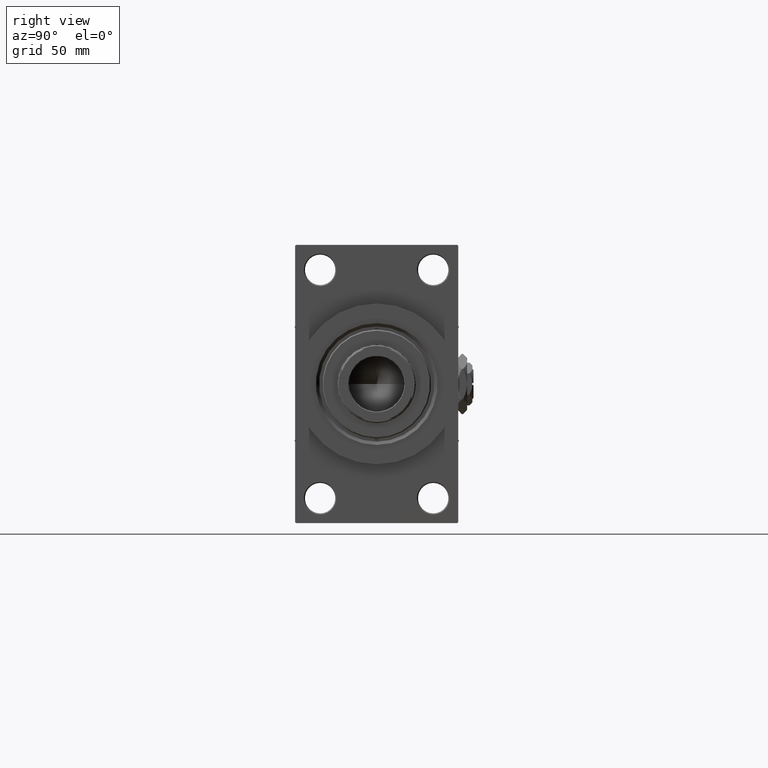
[diagram: clean part render]
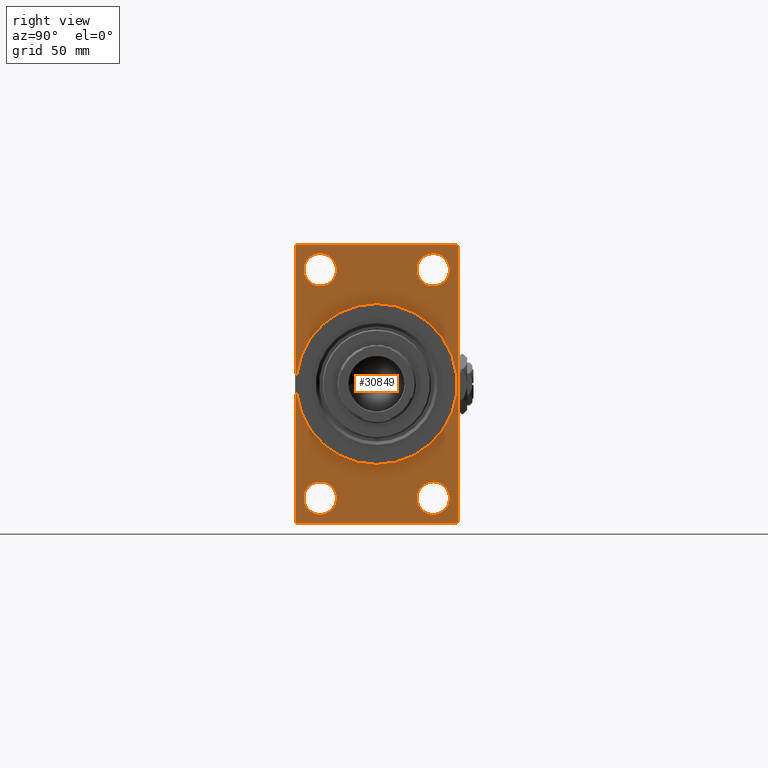
[diagram: same view with one face highlighted and labeled with its STEP entity id]
A machine part, right view. The second image highlights one B-rep face of the part: STEP entity #30849.
In plain terms, the highlighted planar face has unit normal (-1, 0, 0).
Its self-contained STEP definition (entity closure, byte-faithful):
#24 = FACE_BOUND ( 'NONE', #5072, .T. ) ;
#375 = VECTOR ( 'NONE', #11101, 1000.000000000000000 ) ;
#501 = CIRCLE ( 'NONE', #13328, 7.500000000000034639 ) ;
#1618 = ORIENTED_EDGE ( 'NONE', *, *, #11907, .F. ) ;
#1698 = DIRECTION ( 'NONE',  ( 0.000000000000000000, 0.000000000000000000, 1.000000000000000000 ) ) ;
#2341 = CIRCLE ( 'NONE', #30348, 7.500000000000034639 ) ;
#2369 = AXIS2_PLACEMENT_3D ( 'NONE', #30308, #7727, #42069 ) ;
#2934 = ORIENTED_EDGE ( 'NONE', *, *, #43021, .T. ) ;
#3320 = FACE_BOUND ( 'NONE', #43847, .T. ) ;
#3484 = EDGE_CURVE ( 'NONE', #8895, #39971, #23420, .T. ) ;
#3550 = FACE_OUTER_BOUND ( 'NONE', #44103, .T. ) ;
#3788 = FACE_BOUND ( 'NONE', #10649, .T. ) ;
#3893 = ORIENTED_EDGE ( 'NONE', *, *, #41889, .F. ) ;
#3913 = DIRECTION ( 'NONE',  ( -0.000000000000000000, 0.7071067811865574537, 0.7071067811865376918 ) ) ;
#4033 = DIRECTION ( 'NONE',  ( -0.000000000000000000, 0.000000000000000000, 1.000000000000000000 ) ) ;
#4375 = DIRECTION ( 'NONE',  ( 0.000000000000000000, -5.421010862427522170E-17, -1.000000000000000000 ) ) ;
#4381 = VERTEX_POINT ( 'NONE', #43469 ) ;
#4395 = VERTEX_POINT ( 'NONE', #16418 ) ;
#4604 = VECTOR ( 'NONE', #4375, 1000.000000000000000 ) ;
#5072 = EDGE_LOOP ( 'NONE', ( #15855, #3893 ) ) ;
#5077 = DIRECTION ( 'NONE',  ( 0.000000000000000000, 0.000000000000000000, 1.000000000000000000 ) ) ;
#5959 = CARTESIAN_POINT ( 'NONE',  ( 243.0000000000000000, -25.99999999999999645, 52.50000000000000000 ) ) ;
#6035 = DIRECTION ( 'NONE',  ( 0.000000000000000000, 0.000000000000000000, -1.000000000000000000 ) ) ;
#6066 = VERTEX_POINT ( 'NONE', #31106 ) ;
#6174 = CARTESIAN_POINT ( 'NONE',  ( 243.0000000000000000, -25.99999999999999645, 52.50000000000000000 ) ) ;
#6780 = EDGE_CURVE ( 'NONE', #14321, #25291, #12611, .T. ) ;
#7015 = CARTESIAN_POINT ( 'NONE',  ( 243.0000000000000000, 4.531193156845206793E-15, -37.00000000000000000 ) ) ;
#7289 = DIRECTION ( 'NONE',  ( 0.000000000000000000, -1.000000000000000000, -1.850371707708594563E-16 ) ) ;
#7727 = DIRECTION ( 'NONE',  ( -1.000000000000000000, 0.000000000000000000, -0.000000000000000000 ) ) ;
#7881 = CARTESIAN_POINT ( 'NONE',  ( 243.0000000000000000, 37.50000000000000000, 63.99999999999998579 ) ) ;
#7921 = DIRECTION ( 'NONE',  ( -1.000000000000000000, 0.000000000000000000, -0.000000000000000000 ) ) ;
#8305 = CARTESIAN_POINT ( 'NONE',  ( 243.0000000000000000, 37.00000000000000000, 63.99999999999998579 ) ) ;
#8319 = ORIENTED_EDGE ( 'NONE', *, *, #45312, .T. ) ;
#8830 = CARTESIAN_POINT ( 'NONE',  ( 243.0000000000000000, -25.99999999999999645, -52.49999999999999289 ) ) ;
#8895 = VERTEX_POINT ( 'NONE', #39167 ) ;
#8971 = DIRECTION ( 'NONE',  ( 0.000000000000000000, -1.000000000000000000, -1.850371707708594563E-16 ) ) ;
#9391 = EDGE_CURVE ( 'NONE', #29047, #39971, #19211, .T. ) ;
#9460 = VERTEX_POINT ( 'NONE', #42736 ) ;
#9551 = ORIENTED_EDGE ( 'NONE', *, *, #44975, .T. ) ;
#9721 = DIRECTION ( 'NONE',  ( 0.000000000000000000, 0.000000000000000000, 1.000000000000000000 ) ) ;
#9722 = AXIS2_PLACEMENT_3D ( 'NONE', #33805, #49111, #30046 ) ;
#9878 = CARTESIAN_POINT ( 'NONE',  ( 243.0000000000000000, 26.00000000000000000, -60.00000000000002842 ) ) ;
#10420 = CARTESIAN_POINT ( 'NONE',  ( 243.0000000000000000, -37.49999999999999289, 63.50000000000000000 ) ) ;
#10648 = EDGE_CURVE ( 'NONE', #34081, #6066, #2341, .T. ) ;
#10649 = EDGE_LOOP ( 'NONE', ( #35722, #47927 ) ) ;
#10667 = DIRECTION ( 'NONE',  ( 0.000000000000000000, 0.000000000000000000, 1.000000000000000000 ) ) ;
#10677 = VECTOR ( 'NONE', #8971, 1000.000000000000000 ) ;
#11057 = LINE ( 'NONE', #41635, #30382 ) ;
#11101 = DIRECTION ( 'NONE',  ( 0.000000000000000000, 0.000000000000000000, -1.000000000000000000 ) ) ;
#11163 = AXIS2_PLACEMENT_3D ( 'NONE', #30603, #45900, #4033 ) ;
#11688 = VECTOR ( 'NONE', #12318, 1000.000000000000114 ) ;
#11836 = CARTESIAN_POINT ( 'NONE',  ( 243.0000000000000000, 0.000000000000000000, 0.000000000000000000 ) ) ;
#11907 = EDGE_CURVE ( 'NONE', #29047, #14042, #11057, .T. ) ;
#12312 = ORIENTED_EDGE ( 'NONE', *, *, #40842, .T. ) ;
#12318 = DIRECTION ( 'NONE',  ( 0.000000000000000000, -0.7071067811865474617, 0.7071067811865474617 ) ) ;
#12611 = CIRCLE ( 'NONE', #40629, 7.500000000000034639 ) ;
#12717 = VECTOR ( 'NONE', #3913, 999.9999999999998863 ) ;
#12738 = DIRECTION ( 'NONE',  ( -1.000000000000000000, 0.000000000000000000, -0.000000000000000000 ) ) ;
#13328 = AXIS2_PLACEMENT_3D ( 'NONE', #36044, #28508, #1698 ) ;
#13461 = DIRECTION ( 'NONE',  ( 0.000000000000000000, 0.000000000000000000, 1.000000000000000000 ) ) ;
#13924 = AXIS2_PLACEMENT_3D ( 'NONE', #8830, #43667, #5077 ) ;
#14042 = VERTEX_POINT ( 'NONE', #43808 ) ;
#14189 = LINE ( 'NONE', #10420, #36867 ) ;
#14321 = VERTEX_POINT ( 'NONE', #43671 ) ;
#14845 = CARTESIAN_POINT ( 'NONE',  ( 243.0000000000000000, -37.00000000000002132, -64.00000000000001421 ) ) ;
#14981 = ORIENTED_EDGE ( 'NONE', *, *, #3484, .F. ) ;
#15121 = CARTESIAN_POINT ( 'NONE',  ( 243.0000000000000000, -37.49999999999999289, 63.99999999999997158 ) ) ;
#15855 = ORIENTED_EDGE ( 'NONE', *, *, #48265, .F. ) ;
#16214 = ORIENTED_EDGE ( 'NONE', *, *, #33942, .T. ) ;
#16418 = CARTESIAN_POINT ( 'NONE',  ( 243.0000000000000000, 37.00000000000000000, 63.99999999999998579 ) ) ;
#17220 = AXIS2_PLACEMENT_3D ( 'NONE', #6174, #44517, #13461 ) ;
#17362 = EDGE_CURVE ( 'NONE', #4381, #33011, #33741, .T. ) ;
#17461 = DIRECTION ( 'NONE',  ( -1.000000000000000000, 0.000000000000000000, -0.000000000000000000 ) ) ;
#17582 = CIRCLE ( 'NONE', #2369, 7.500000000000034639 ) ;
#18607 = FACE_BOUND ( 'NONE', #28913, .T. ) ;
#19009 = VERTEX_POINT ( 'NONE', #32136 ) ;
#19211 = LINE ( 'NONE', #25991, #12717 ) ;
#19518 = CARTESIAN_POINT ( 'NONE',  ( 243.0000000000000000, 37.50000000000000000, 63.99999999999998579 ) ) ;
#20071 = EDGE_CURVE ( 'NONE', #8895, #4395, #23117, .T. ) ;
#21930 = ORIENTED_EDGE ( 'NONE', *, *, #9391, .T. ) ;
#22705 = VERTEX_POINT ( 'NONE', #47820 ) ;
#23117 = LINE ( 'NONE', #8305, #11688 ) ;
#23225 = DIRECTION ( 'NONE',  ( 0.000000000000000000, 0.000000000000000000, 1.000000000000000000 ) ) ;
#23353 = ORIENTED_EDGE ( 'NONE', *, *, #30980, .T. ) ;
#23420 = LINE ( 'NONE', #7881, #4604 ) ;
#25291 = VERTEX_POINT ( 'NONE', #9878 ) ;
#25991 = CARTESIAN_POINT ( 'NONE',  ( 243.0000000000000000, 37.49999999999999289, -63.50000000000007105 ) ) ;
#26045 = CARTESIAN_POINT ( 'NONE',  ( 243.0000000000000000, 37.00000000000004974, -64.00000000000000000 ) ) ;
#27120 = DIRECTION ( 'NONE',  ( 1.000000000000000000, 0.000000000000000000, 0.000000000000000000 ) ) ;
#27284 = AXIS2_PLACEMENT_3D ( 'NONE', #29727, #17461, #10667 ) ;
#28508 = DIRECTION ( 'NONE',  ( -1.000000000000000000, 0.000000000000000000, -0.000000000000000000 ) ) ;
#28913 = EDGE_LOOP ( 'NONE', ( #23353, #30238 ) ) ;
#29047 = VERTEX_POINT ( 'NONE', #26045 ) ;
#29214 = ORIENTED_EDGE ( 'NONE', *, *, #6780, .T. ) ;
#29727 = CARTESIAN_POINT ( 'NONE',  ( 243.0000000000000000, -25.99999999999999645, -52.49999999999999289 ) ) ;
#29906 = LINE ( 'NONE', #15121, #375 ) ;
#29951 = CIRCLE ( 'NONE', #39551, 37.00000000000000000 ) ;
#30046 = DIRECTION ( 'NONE',  ( 0.000000000000000000, 0.000000000000000000, 1.000000000000000000 ) ) ;
#30238 = ORIENTED_EDGE ( 'NONE', *, *, #17362, .T. ) ;
#30308 = CARTESIAN_POINT ( 'NONE',  ( 243.0000000000000000, 26.00000000000000000, 52.49999999999999289 ) ) ;
#30348 = AXIS2_PLACEMENT_3D ( 'NONE', #5959, #12738, #9721 ) ;
#30382 = VECTOR ( 'NONE', #7289, 1000.000000000000000 ) ;
#30603 = CARTESIAN_POINT ( 'NONE',  ( 243.0000000000000000, 0.000000000000000000, 0.000000000000000000 ) ) ;
#30690 = CARTESIAN_POINT ( 'NONE',  ( 243.0000000000000000, -25.99999999999999645, 60.00000000000003553 ) ) ;
#30698 = VECTOR ( 'NONE', #38126, 1000.000000000000114 ) ;
#30849 = ADVANCED_FACE ( 'NONE', ( #3788, #45670, #3320, #18607, #24, #3550 ), #41882, .F. ) ;
#30980 = EDGE_CURVE ( 'NONE', #33011, #4381, #17582, .T. ) ;
#31106 = CARTESIAN_POINT ( 'NONE',  ( 243.0000000000000000, -25.99999999999999645, 44.99999999999996447 ) ) ;
#31189 = VERTEX_POINT ( 'NONE', #35047 ) ;
#31604 = CARTESIAN_POINT ( 'NONE',  ( 243.0000000000000000, 26.00000000000000000, 44.99999999999995737 ) ) ;
#31930 = CARTESIAN_POINT ( 'NONE',  ( 243.0000000000000000, 0.000000000000000000, 37.00000000000000000 ) ) ;
#32136 = CARTESIAN_POINT ( 'NONE',  ( 243.0000000000000000, -37.00000000000001421, 63.99999999999997158 ) ) ;
#32950 = EDGE_CURVE ( 'NONE', #19009, #9460, #14189, .T. ) ;
#33011 = VERTEX_POINT ( 'NONE', #31604 ) ;
#33714 = CIRCLE ( 'NONE', #27284, 7.500000000000034639 ) ;
#33741 = CIRCLE ( 'NONE', #9722, 7.500000000000034639 ) ;
#33805 = CARTESIAN_POINT ( 'NONE',  ( 243.0000000000000000, 26.00000000000000000, 52.49999999999999289 ) ) ;
#33942 = EDGE_CURVE ( 'NONE', #34942, #22705, #33714, .T. ) ;
#34081 = VERTEX_POINT ( 'NONE', #30690 ) ;
#34121 = CARTESIAN_POINT ( 'NONE',  ( 243.0000000000000000, 37.49999999999999289, -63.50000000000007105 ) ) ;
#34574 = ORIENTED_EDGE ( 'NONE', *, *, #44170, .T. ) ;
#34942 = VERTEX_POINT ( 'NONE', #46177 ) ;
#34970 = ORIENTED_EDGE ( 'NONE', *, *, #20071, .T. ) ;
#35047 = CARTESIAN_POINT ( 'NONE',  ( 243.0000000000000000, -37.49999999999999289, -63.50000000000002842 ) ) ;
#35051 = LINE ( 'NONE', #19518, #10677 ) ;
#35722 = ORIENTED_EDGE ( 'NONE', *, *, #47742, .T. ) ;
#36044 = CARTESIAN_POINT ( 'NONE',  ( 243.0000000000000000, 26.00000000000000000, -52.49999999999999289 ) ) ;
#36621 = DIRECTION ( 'NONE',  ( 1.000000000000000000, 0.000000000000000000, 0.000000000000000000 ) ) ;
#36867 = VECTOR ( 'NONE', #44507, 1000.000000000000000 ) ;
#37106 = ORIENTED_EDGE ( 'NONE', *, *, #32950, .T. ) ;
#38126 = DIRECTION ( 'NONE',  ( 0.000000000000000000, 0.7071067811865376918, -0.7071067811865573427 ) ) ;
#39167 = CARTESIAN_POINT ( 'NONE',  ( 243.0000000000000000, 37.50000000000000000, 63.49999999999998579 ) ) ;
#39551 = AXIS2_PLACEMENT_3D ( 'NONE', #48657, #36621, #6035 ) ;
#39573 = EDGE_LOOP ( 'NONE', ( #12312, #16214 ) ) ;
#39971 = VERTEX_POINT ( 'NONE', #34121 ) ;
#40400 = CIRCLE ( 'NONE', #45215, 37.00000000000000000 ) ;
#40629 = AXIS2_PLACEMENT_3D ( 'NONE', #41776, #7921, #23225 ) ;
#40842 = EDGE_CURVE ( 'NONE', #22705, #34942, #47519, .T. ) ;
#41635 = CARTESIAN_POINT ( 'NONE',  ( 243.0000000000000000, 37.49999999999999289, -64.00000000000000000 ) ) ;
#41776 = CARTESIAN_POINT ( 'NONE',  ( 243.0000000000000000, 26.00000000000000000, -52.49999999999999289 ) ) ;
#41882 = PLANE ( 'NONE',  #11163 ) ;
#41889 = EDGE_CURVE ( 'NONE', #45233, #43642, #29951, .T. ) ;
#42069 = DIRECTION ( 'NONE',  ( 0.000000000000000000, 0.000000000000000000, 1.000000000000000000 ) ) ;
#42407 = DIRECTION ( 'NONE',  ( 0.000000000000000000, 0.000000000000000000, -1.000000000000000000 ) ) ;
#42736 = CARTESIAN_POINT ( 'NONE',  ( 243.0000000000000000, -37.49999999999999289, 63.50000000000000000 ) ) ;
#43021 = EDGE_CURVE ( 'NONE', #9460, #31189, #29906, .T. ) ;
#43469 = CARTESIAN_POINT ( 'NONE',  ( 243.0000000000000000, 26.00000000000000000, 60.00000000000002842 ) ) ;
#43642 = VERTEX_POINT ( 'NONE', #31930 ) ;
#43667 = DIRECTION ( 'NONE',  ( -1.000000000000000000, 0.000000000000000000, -0.000000000000000000 ) ) ;
#43671 = CARTESIAN_POINT ( 'NONE',  ( 243.0000000000000000, 26.00000000000000000, -44.99999999999995737 ) ) ;
#43808 = CARTESIAN_POINT ( 'NONE',  ( 243.0000000000000000, -37.00000000000002132, -64.00000000000001421 ) ) ;
#43847 = EDGE_LOOP ( 'NONE', ( #34574, #29214 ) ) ;
#44103 = EDGE_LOOP ( 'NONE', ( #2934, #9551, #1618, #21930, #14981, #34970, #8319, #37106 ) ) ;
#44170 = EDGE_CURVE ( 'NONE', #25291, #14321, #501, .T. ) ;
#44507 = DIRECTION ( 'NONE',  ( -0.000000000000000000, -0.7071067811865524577, -0.7071067811865426878 ) ) ;
#44517 = DIRECTION ( 'NONE',  ( -1.000000000000000000, 0.000000000000000000, -0.000000000000000000 ) ) ;
#44975 = EDGE_CURVE ( 'NONE', #31189, #14042, #49190, .T. ) ;
#45215 = AXIS2_PLACEMENT_3D ( 'NONE', #11836, #27120, #42407 ) ;
#45233 = VERTEX_POINT ( 'NONE', #7015 ) ;
#45312 = EDGE_CURVE ( 'NONE', #4395, #19009, #35051, .T. ) ;
#45670 = FACE_BOUND ( 'NONE', #39573, .T. ) ;
#45900 = DIRECTION ( 'NONE',  ( -1.000000000000000000, 0.000000000000000000, -0.000000000000000000 ) ) ;
#46177 = CARTESIAN_POINT ( 'NONE',  ( 243.0000000000000000, -25.99999999999999645, -44.99999999999995737 ) ) ;
#47519 = CIRCLE ( 'NONE', #13924, 7.500000000000034639 ) ;
#47742 = EDGE_CURVE ( 'NONE', #6066, #34081, #49229, .T. ) ;
#47820 = CARTESIAN_POINT ( 'NONE',  ( 243.0000000000000000, -25.99999999999999645, -60.00000000000002842 ) ) ;
#47927 = ORIENTED_EDGE ( 'NONE', *, *, #10648, .T. ) ;
#48265 = EDGE_CURVE ( 'NONE', #43642, #45233, #40400, .T. ) ;
#48657 = CARTESIAN_POINT ( 'NONE',  ( 243.0000000000000000, 0.000000000000000000, 0.000000000000000000 ) ) ;
#49111 = DIRECTION ( 'NONE',  ( -1.000000000000000000, 0.000000000000000000, -0.000000000000000000 ) ) ;
#49190 = LINE ( 'NONE', #14845, #30698 ) ;
#49229 = CIRCLE ( 'NONE', #17220, 7.500000000000034639 ) ;